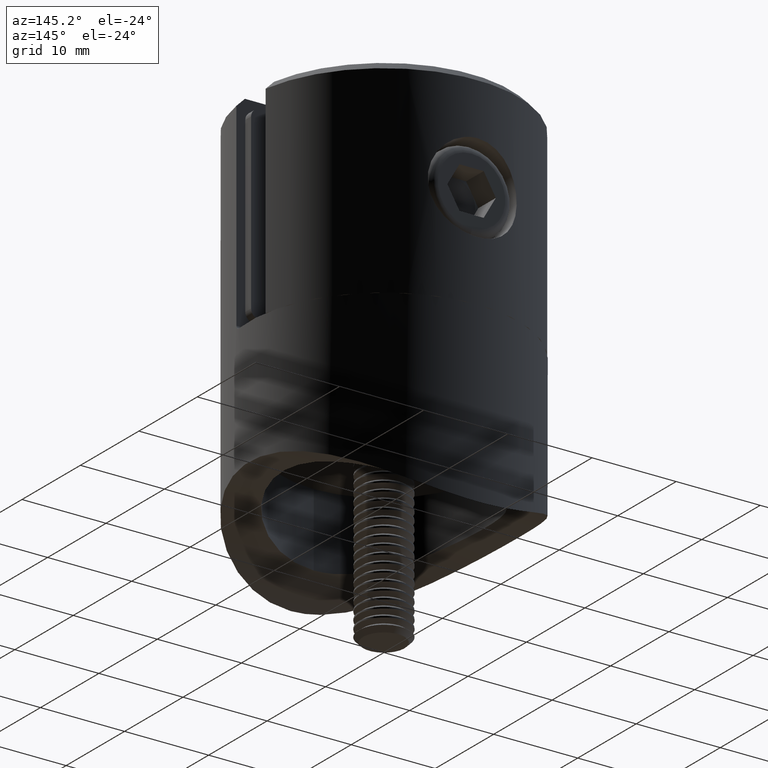
[diagram: clean part render]
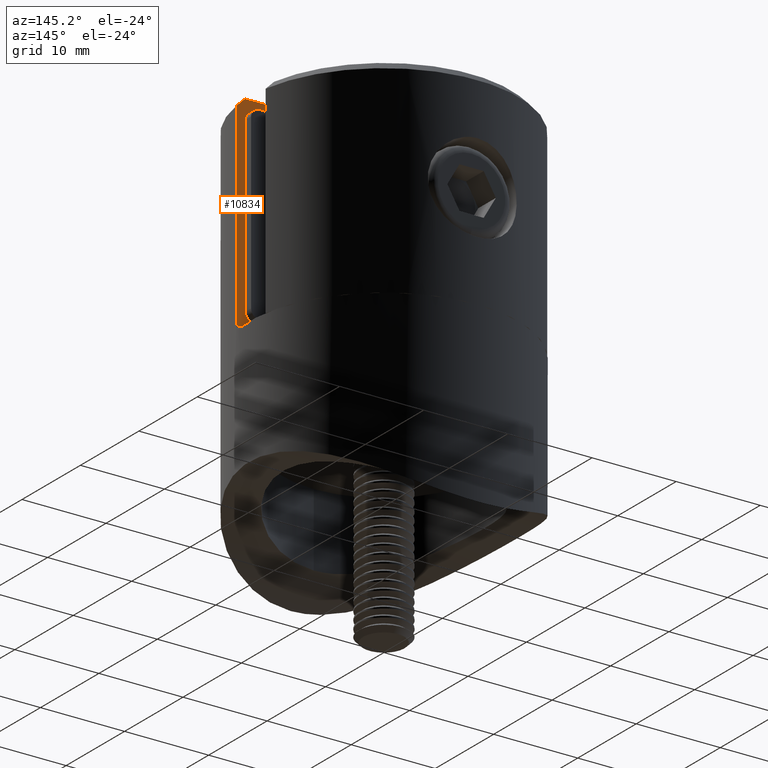
[diagram: same view with one face highlighted and labeled with its STEP entity id]
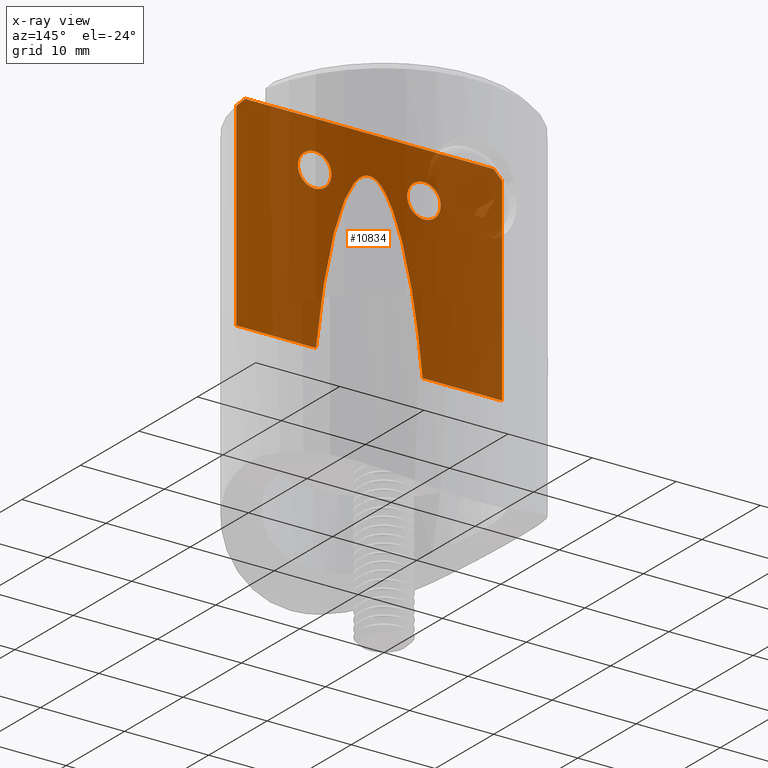
[diagram: x-ray of the same camera — body ghosted, the highlighted face saturated]
A machine part, auxiliary view. The second image highlights one B-rep face of the part: STEP entity #10834.
The next image is the same camera in x-ray: the body ghosted, the highlighted face saturated — about 82% of this face is hidden behind the body in this view.
In plain terms, the highlighted planar face has unit normal (0, -1, 0).
Its self-contained STEP definition (entity closure, byte-faithful):
#556 = VERTEX_POINT ( 'NONE', #2064 ) ;
#656 = CARTESIAN_POINT ( 'NONE',  ( 6.340443160240219811, -2.500000000000001332, 15.50000000000000000 ) ) ;
#719 = CARTESIAN_POINT ( 'NONE',  ( 15.80348062927910568, -2.500000000000001332, 40.00000000000000000 ) ) ;
#861 = PLANE ( 'NONE',  #10181 ) ;
#1683 = EDGE_CURVE ( 'NONE', #10757, #17136, #11264, .T. ) ;
#2064 = CARTESIAN_POINT ( 'NONE',  ( 6.340443160240219811, -2.500000000000001332, 15.50000000000000000 ) ) ;
#2110 = CARTESIAN_POINT ( 'NONE',  ( 3.294760736107178456, -2.500000000000001332, 45.89284054076230035 ) ) ;
#2377 = EDGE_LOOP ( 'NONE', ( #13135 ) ) ;
#2830 = ORIENTED_EDGE ( 'NONE', *, *, #4761, .T. ) ;
#3016 = DIRECTION ( 'NONE',  ( 0.000000000000000000, 1.000000000000000000, 0.000000000000000000 ) ) ;
#3171 = CIRCLE ( 'NONE', #10126, 2.000000000000001776 ) ;
#3848 = CARTESIAN_POINT ( 'NONE',  ( -15.12810841561664787, -2.500000000000001332, 39.66681727430518833 ) ) ;
#3855 = DIRECTION ( 'NONE',  ( 0.000000000000000000, -1.000000000000000000, 0.000000000000000000 ) ) ;
#4270 = EDGE_CURVE ( 'NONE', #17325, #556, #10249, .T. ) ;
#4421 = DIRECTION ( 'NONE',  ( 0.000000000000000000, 0.000000000000000000, 1.000000000000000000 ) ) ;
#4585 = EDGE_CURVE ( 'NONE', #15308, #5890, #16169, .T. ) ;
#4761 = EDGE_CURVE ( 'NONE', #15598, #17325, #14005, .T. ) ;
#4851 = EDGE_LOOP ( 'NONE', ( #18823, #18440, #18891, #19395, #6237, #12907, #2830, #15174 ) ) ;
#5031 = VERTEX_POINT ( 'NONE', #19939 ) ;
#5183 = EDGE_CURVE ( 'NONE', #20015, #5890, #7735, .T. ) ;
#5395 = EDGE_CURVE ( 'NONE', #10792, #10792, #3171, .T. ) ;
#5473 = DIRECTION ( 'NONE',  ( -1.000000000000000000, 0.000000000000000000, 0.000000000000000000 ) ) ;
#5591 = CARTESIAN_POINT ( 'NONE',  ( -15.80348062927910568, -2.500000000000001332, 38.99999999999999289 ) ) ;
#5592 = DIRECTION ( 'NONE',  ( -0.000000000000000000, -0.000000000000000000, -1.000000000000000000 ) ) ;
#5707 = AXIS2_PLACEMENT_3D ( 'NONE', #15046, #3016, #13767 ) ;
#5840 = CARTESIAN_POINT ( 'NONE',  ( 15.80348062927910568, -2.500000000000001332, 38.99999999999999289 ) ) ;
#5890 = VERTEX_POINT ( 'NONE', #13938 ) ;
#6166 = VECTOR ( 'NONE', #5473, 1000.000000000000000 ) ;
#6213 = CARTESIAN_POINT ( 'NONE',  ( 6.500000000000000000, -2.500000000000001332, 36.50000000000000711 ) ) ;
#6237 = ORIENTED_EDGE ( 'NONE', *, *, #1683, .F. ) ;
#6271 = CARTESIAN_POINT ( 'NONE',  ( -14.79019945774903988, -2.500000000000001332, 40.00000000000000000 ) ) ;
#6404 = FACE_BOUND ( 'NONE', #14961, .T. ) ;
#6796 = CARTESIAN_POINT ( 'NONE',  ( -6.340443160240221587, -2.500000000000001332, 15.50000000000000000 ) ) ;
#6872 = FACE_BOUND ( 'NONE', #2377, .T. ) ;
#7735 = LINE ( 'NONE', #11744, #9886 ) ;
#8028 = CIRCLE ( 'NONE', #5707, 2.000000000000008882 ) ;
#8818 =( BOUNDED_CURVE ( )  B_SPLINE_CURVE ( 3, ( #656, #2110, #11576, #6796 ),
 .UNSPECIFIED., .F., .F. ) 
 B_SPLINE_CURVE_WITH_KNOTS ( ( 4, 4 ),
 ( 5.192864435703334891, 7.373506178655837573 ),
 .UNSPECIFIED. ) 
 CURVE ( )  GEOMETRIC_REPRESENTATION_ITEM ( )  RATIONAL_B_SPLINE_CURVE ( ( 1.000000000000000000, 0.6414672331899056168, 0.6414672331899056168, 1.000000000000000000 ) ) 
 REPRESENTATION_ITEM ( '' )  );
#8852 = CARTESIAN_POINT ( 'NONE',  ( 6.500000000000000000, -2.500000000000001332, 34.50000000000000000 ) ) ;
#9132 = DIRECTION ( 'NONE',  ( 0.000000000000000000, 1.000000000000000000, 0.000000000000000000 ) ) ;
#9847 = CARTESIAN_POINT ( 'NONE',  ( -15.80348062927910568, -2.500000000000001332, 38.99999999999999289 ) ) ;
#9886 = VECTOR ( 'NONE', #17776, 1000.000000000000000 ) ;
#10126 = AXIS2_PLACEMENT_3D ( 'NONE', #8852, #9132, #4421 ) ;
#10181 = AXIS2_PLACEMENT_3D ( 'NONE', #14747, #3855, #13026 ) ;
#10249 = LINE ( 'NONE', #11712, #6166 ) ;
#10309 = VECTOR ( 'NONE', #13498, 1000.000000000000000 ) ;
#10402 = VECTOR ( 'NONE', #5592, 1000.000000000000000 ) ;
#10739 = FACE_OUTER_BOUND ( 'NONE', #4851, .T. ) ;
#10757 = VERTEX_POINT ( 'NONE', #14140 ) ;
#10792 = VERTEX_POINT ( 'NONE', #6213 ) ;
#10834 = ADVANCED_FACE ( 'NONE', ( #6872, #6404, #10739 ), #861, .F. ) ;
#11093 = VECTOR ( 'NONE', #18351, 1000.000000000000000 ) ;
#11209 = CARTESIAN_POINT ( 'NONE',  ( -6.340443160240221587, -2.500000000000001332, 15.50000000000000000 ) ) ;
#11264 = LINE ( 'NONE', #19974, #10309 ) ;
#11576 = CARTESIAN_POINT ( 'NONE',  ( -3.294760736107175791, -2.500000000000001332, 45.89284054076230746 ) ) ;
#11656 = CARTESIAN_POINT ( 'NONE',  ( 14.79019945774903810, -2.500000000000001332, 40.00000000000000000 ) ) ;
#11712 = CARTESIAN_POINT ( 'NONE',  ( 6.389628886300964261, -2.500000000000001332, 15.50000000000000000 ) ) ;
#11744 = CARTESIAN_POINT ( 'NONE',  ( -15.80348062927910568, -2.500000000000001332, 40.00000000000000000 ) ) ;
#11764 = CARTESIAN_POINT ( 'NONE',  ( -15.46585946293022218, -2.500000000000001776, 39.33347434765182271 ) ) ;
#12201 = EDGE_CURVE ( 'NONE', #556, #15308, #8818, .T. ) ;
#12907 = ORIENTED_EDGE ( 'NONE', *, *, #14519, .T. ) ;
#12988 = CARTESIAN_POINT ( 'NONE',  ( 15.12810841561665143, -2.500000000000001332, 39.66681727430518833 ) ) ;
#13026 = DIRECTION ( 'NONE',  ( 0.000000000000000000, -0.000000000000000000, -1.000000000000000000 ) ) ;
#13135 = ORIENTED_EDGE ( 'NONE', *, *, #5395, .F. ) ;
#13223 = B_SPLINE_CURVE_WITH_KNOTS ( 'NONE', 3,
 ( #5591, #11764, #3848, #16361 ),
 .UNSPECIFIED., .F., .F.,
 ( 4, 4 ),
 ( 3.469446951953614189E-18, 0.001423635744345220144 ),
 .UNSPECIFIED. ) ;
#13498 = DIRECTION ( 'NONE',  ( -1.000000000000000000, 0.000000000000000000, 0.000000000000000000 ) ) ;
#13767 = DIRECTION ( 'NONE',  ( 0.000000000000000000, 0.000000000000000000, 1.000000000000000000 ) ) ;
#13938 = CARTESIAN_POINT ( 'NONE',  ( -15.80348062927910568, -2.500000000000001332, 15.50000000000000000 ) ) ;
#14005 = LINE ( 'NONE', #719, #10402 ) ;
#14140 = CARTESIAN_POINT ( 'NONE',  ( 14.79019945774903810, -2.500000000000001332, 40.00000000000000000 ) ) ;
#14234 = EDGE_CURVE ( 'NONE', #5031, #5031, #8028, .T. ) ;
#14519 = EDGE_CURVE ( 'NONE', #10757, #15598, #17102, .T. ) ;
#14572 = CARTESIAN_POINT ( 'NONE',  ( 15.80348062927910568, -2.500000000000001332, 38.99999999999999289 ) ) ;
#14747 = CARTESIAN_POINT ( 'NONE',  ( 15.80348062927910568, -2.500000000000001332, 40.00000000000000000 ) ) ;
#14961 = EDGE_LOOP ( 'NONE', ( #19579 ) ) ;
#15046 = CARTESIAN_POINT ( 'NONE',  ( -6.500000000000000000, -2.500000000000001332, 34.50000000000000000 ) ) ;
#15174 = ORIENTED_EDGE ( 'NONE', *, *, #4270, .T. ) ;
#15214 = CARTESIAN_POINT ( 'NONE',  ( -15.80348062927910568, -2.500000000000001332, 15.50000000000000000 ) ) ;
#15308 = VERTEX_POINT ( 'NONE', #11209 ) ;
#15598 = VERTEX_POINT ( 'NONE', #5840 ) ;
#16169 = LINE ( 'NONE', #15214, #11093 ) ;
#16323 = CARTESIAN_POINT ( 'NONE',  ( 15.46585946293022218, -2.500000000000001332, 39.33347434765181561 ) ) ;
#16361 = CARTESIAN_POINT ( 'NONE',  ( -14.79019945774903988, -2.500000000000001332, 40.00000000000000000 ) ) ;
#16588 = EDGE_CURVE ( 'NONE', #20015, #17136, #13223, .T. ) ;
#17102 = B_SPLINE_CURVE_WITH_KNOTS ( 'NONE', 3,
 ( #11656, #12988, #16323, #14572 ),
 .UNSPECIFIED., .F., .F.,
 ( 4, 4 ),
 ( 0.000000000000000000, 0.001423635744345217542 ),
 .UNSPECIFIED. ) ;
#17136 = VERTEX_POINT ( 'NONE', #6271 ) ;
#17325 = VERTEX_POINT ( 'NONE', #17429 ) ;
#17429 = CARTESIAN_POINT ( 'NONE',  ( 15.80348062927910568, -2.500000000000001332, 15.50000000000000000 ) ) ;
#17776 = DIRECTION ( 'NONE',  ( -0.000000000000000000, -0.000000000000000000, -1.000000000000000000 ) ) ;
#18351 = DIRECTION ( 'NONE',  ( -1.000000000000000000, 0.000000000000000000, 0.000000000000000000 ) ) ;
#18440 = ORIENTED_EDGE ( 'NONE', *, *, #4585, .T. ) ;
#18823 = ORIENTED_EDGE ( 'NONE', *, *, #12201, .T. ) ;
#18891 = ORIENTED_EDGE ( 'NONE', *, *, #5183, .F. ) ;
#19395 = ORIENTED_EDGE ( 'NONE', *, *, #16588, .T. ) ;
#19579 = ORIENTED_EDGE ( 'NONE', *, *, #14234, .F. ) ;
#19939 = CARTESIAN_POINT ( 'NONE',  ( -6.500000000000000000, -2.500000000000001332, 36.50000000000001421 ) ) ;
#19974 = CARTESIAN_POINT ( 'NONE',  ( 15.80348062927910568, -2.500000000000001332, 40.00000000000000000 ) ) ;
#20015 = VERTEX_POINT ( 'NONE', #9847 ) ;